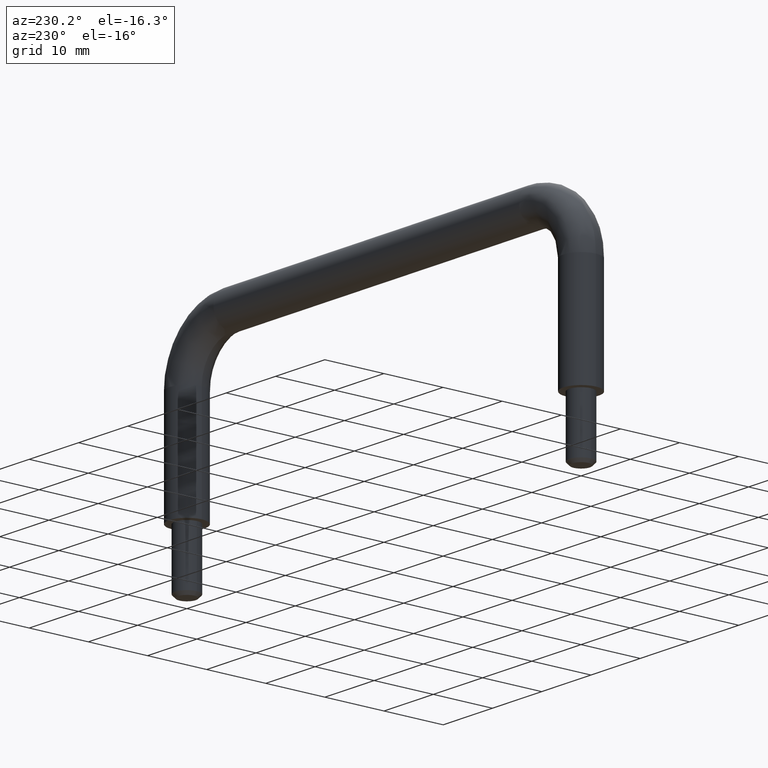
[diagram: clean part render]
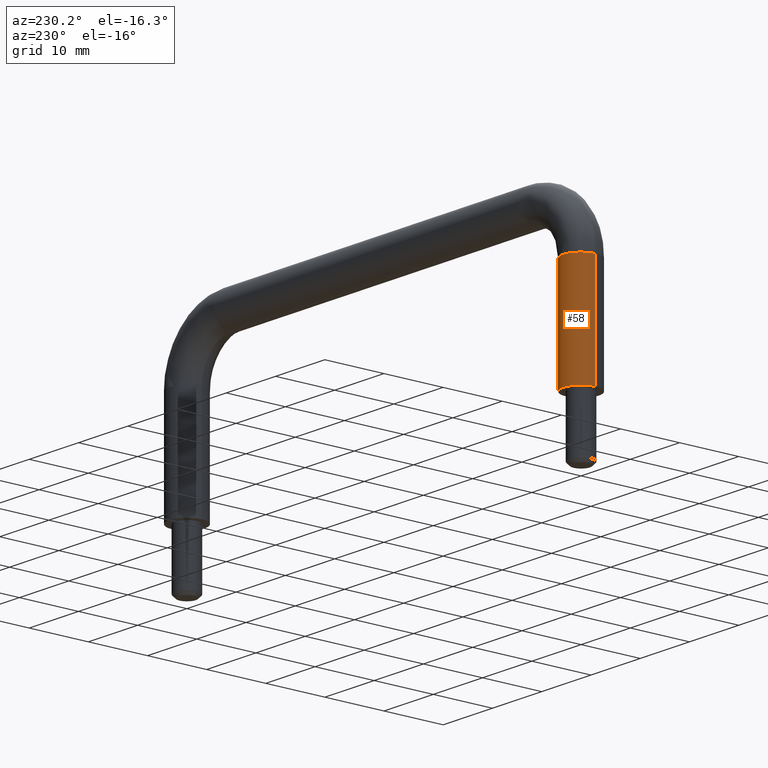
[diagram: same view with one face highlighted and labeled with its STEP entity id]
A machine part, auxiliary view. The second image highlights one B-rep face of the part: STEP entity #58.
In plain terms, the highlighted cylindrical surface (edge-blend (fillet) strip) has radius 3 mm, axis along (-0, -0, 1).
Its self-contained STEP definition (entity closure, byte-faithful):
#58=ADVANCED_FACE('',(#245),#244,.T.);
#244=CYLINDRICAL_SURFACE('',#583,3.00000000000E+00);
#245=FACE_OUTER_BOUND('',#584,.T.);
#580=CARTESIAN_POINT('',(-3.99999999999E+01,0.00000000000E+00,-1.50000000000E+01));
#581=DIRECTION('',(-0.00000000000E+00,-0.00000000000E+00,1.00000000000E+00));
#582=DIRECTION('',(1.00000000000E+00,-1.22464679915E-16,0.00000000000E+00));
#583=AXIS2_PLACEMENT_3D('',#580,#581,#582);
#584=EDGE_LOOP('',(#668,#669,#670,#671));
#668=ORIENTED_EDGE('',*,*,#707,.T.);
#669=ORIENTED_EDGE('',*,*,#722,.F.);
#670=ORIENTED_EDGE('',*,*,#700,.T.);
#671=ORIENTED_EDGE('',*,*,#723,.T.);
#700=EDGE_CURVE('',#836,#837,#838,.T.);
#707=EDGE_CURVE('',#727,#726,#884,.T.);
#722=EDGE_CURVE('',#836,#726,#978,.T.);
#723=EDGE_CURVE('',#837,#727,#984,.T.);
#726=VERTEX_POINT('',#1002);
#727=VERTEX_POINT('',#1003);
#836=VERTEX_POINT('',#1082);
#837=VERTEX_POINT('',#1083);
#838=CIRCLE('',#1087,3.00000000000E+00);
#884=CIRCLE('',#1119,3.00000000000E+00);
#978=(BOUNDED_CURVE() B_SPLINE_CURVE(1,(#1160,#1161),.UNSPECIFIED.,.F.,.F.) B_SPLINE_CURVE_WITH_KNOTS((2,2),(8.33333328360E-02,9.16666665505E-01),.UNSPECIFIED.) CURVE() GEOMETRIC_REPRESENTATION_ITEM() RATIONAL_B_SPLINE_CURVE((1.00000000000E+00,1.00000000000E+00)) REPRESENTATION_ITEM('') );
#984=(BOUNDED_CURVE() B_SPLINE_CURVE(1,(#1162,#1163),.UNSPECIFIED.,.F.,.F.) B_SPLINE_CURVE_WITH_KNOTS((2,2),(8.33333333333E-02,9.16666666667E-01),.UNSPECIFIED.) CURVE() GEOMETRIC_REPRESENTATION_ITEM() RATIONAL_B_SPLINE_CURVE((7.50000000000E-01,7.50000000000E-01)) REPRESENTATION_ITEM('') );
#1002=CARTESIAN_POINT('',(-3.69999999999E+01,-1.48029736617E-16,-6.00000000000E+00));
#1003=CARTESIAN_POINT('',(-4.29999999999E+01,0.00000000000E+00,-6.00000000000E+00));
#1082=CARTESIAN_POINT('',(-3.69999999999E+01,1.03620815632E-15,-2.40000000000E+01));
#1083=CARTESIAN_POINT('',(-4.29999999999E+01,-2.24737040320E-16,-2.40000000000E+01));
#1084=CARTESIAN_POINT('',(-3.99999999999E+01,0.00000000000E+00,-2.40000000000E+01));
#1085=DIRECTION('',(0.00000000000E+00,-0.00000000000E+00,1.00000000000E+00));
#1086=DIRECTION('',(-1.00000000000E+00,-1.97372982156E-16,-0.00000000000E+00));
#1087=AXIS2_PLACEMENT_3D('',#1084,#1085,#1086);
#1116=CARTESIAN_POINT('',(-3.99999999999E+01,0.00000000000E+00,-6.00000000000E+00));
#1117=DIRECTION('',(0.00000000000E+00,0.00000000000E+00,-1.00000000000E+00));
#1118=DIRECTION('',(1.00000000000E+00,-0.00000000000E+00,-0.00000000000E+00));
#1119=AXIS2_PLACEMENT_3D('',#1116,#1117,#1118);
#1160=CARTESIAN_POINT('',(-3.69999999999E+01,-3.67394039744E-16,-2.40000000107E+01));
#1161=CARTESIAN_POINT('',(-3.69999999999E+01,-3.67394039744E-16,-6.00000002510E+00));
#1162=CARTESIAN_POINT('',(-4.29999999999E+01,0.00000000000E+00,-2.40000000000E+01));
#1163=CARTESIAN_POINT('',(-4.29999999999E+01,0.00000000000E+00,-6.00000000000E+00));